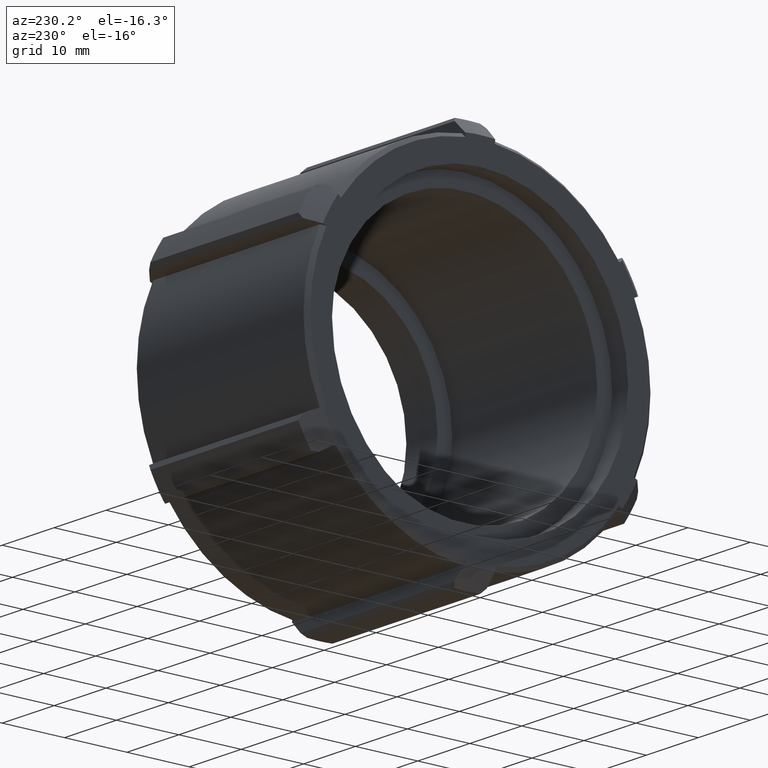
[diagram: clean part render]
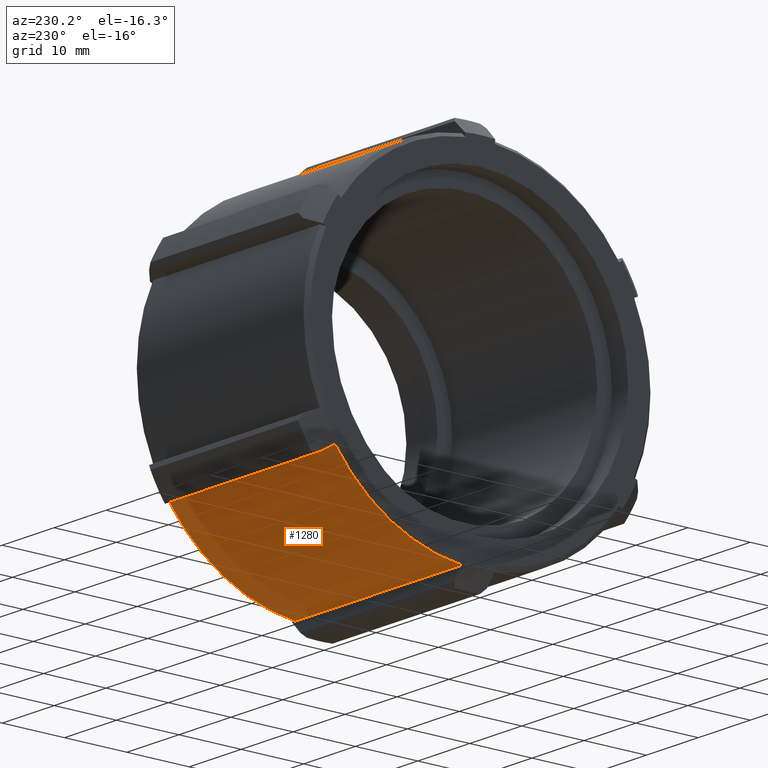
[diagram: same view with one face highlighted and labeled with its STEP entity id]
A machine part, auxiliary view. The second image highlights one B-rep face of the part: STEP entity #1280.
In plain terms, the highlighted cylindrical surface (partial cylindrical patch) has radius 27.83 mm, axis along (1, 0, 0).
Its self-contained STEP definition (entity closure, byte-faithful):
#64=CYLINDRICAL_SURFACE('',#1398,27.83);
#132=LINE('',#2006,#240);
#136=LINE('',#2022,#244);
#240=VECTOR('',#1612,32.09);
#244=VECTOR('',#1620,32.09);
#376=FACE_OUTER_BOUND('',#450,.T.);
#450=EDGE_LOOP('',(#1117,#1118,#1119,#1120));
#502=CIRCLE('',#1335,27.83);
#520=CIRCLE('',#1359,27.83);
#574=VERTEX_POINT('',#1878);
#575=VERTEX_POINT('',#1880);
#609=VERTEX_POINT('',#1959);
#610=VERTEX_POINT('',#1961);
#707=EDGE_CURVE('',#574,#575,#502,.T.);
#747=EDGE_CURVE('',#609,#610,#520,.T.);
#767=EDGE_CURVE('',#609,#575,#132,.T.);
#773=EDGE_CURVE('',#610,#574,#136,.T.);
#1117=ORIENTED_EDGE('',*,*,#707,.F.);
#1118=ORIENTED_EDGE('',*,*,#773,.F.);
#1119=ORIENTED_EDGE('',*,*,#747,.F.);
#1120=ORIENTED_EDGE('',*,*,#767,.T.);
#1280=ADVANCED_FACE('',(#376),#64,.T.);
#1335=AXIS2_PLACEMENT_3D('',#1881,#1508,#1509);
#1359=AXIS2_PLACEMENT_3D('',#1962,#1578,#1579);
#1398=AXIS2_PLACEMENT_3D('',#2176,#1715,#1716);
#1508=DIRECTION('center_axis',(1.,0.,0.));
#1509=DIRECTION('ref_axis',(0.,-0.866025403784439,-0.499999999999999));
#1578=DIRECTION('center_axis',(-1.,0.,0.));
#1579=DIRECTION('ref_axis',(0.,-0.866025403784439,-0.499999999999999));
#1612=DIRECTION('',(1.,0.,0.));
#1620=DIRECTION('',(1.,0.,0.));
#1715=DIRECTION('center_axis',(1.,0.,0.));
#1716=DIRECTION('ref_axis',(0.,-0.866025403784439,-0.499999999999999));
#1878=CARTESIAN_POINT('',(32.695,2.42554432066729,-27.7240984478933));
#1880=CARTESIAN_POINT('',(32.695,22.7970013925626,-15.9626322236496));
#1881=CARTESIAN_POINT('Origin',(32.695,0.,0.));
#1959=CARTESIAN_POINT('',(0.604999999999998,22.7970013925626,-15.9626322236496));
#1961=CARTESIAN_POINT('',(0.604999999999998,2.42554432066729,-27.7240984478933));
#1962=CARTESIAN_POINT('Origin',(0.604999999999998,0.,0.));
#2006=CARTESIAN_POINT('',(-2.22044604925031E-15,22.7970013925626,-15.9626322236496));
#2022=CARTESIAN_POINT('',(-2.22044604925031E-15,2.42554432066729,-27.7240984478933));
#2176=CARTESIAN_POINT('Origin',(-2.22044604925031E-15,0.,0.));